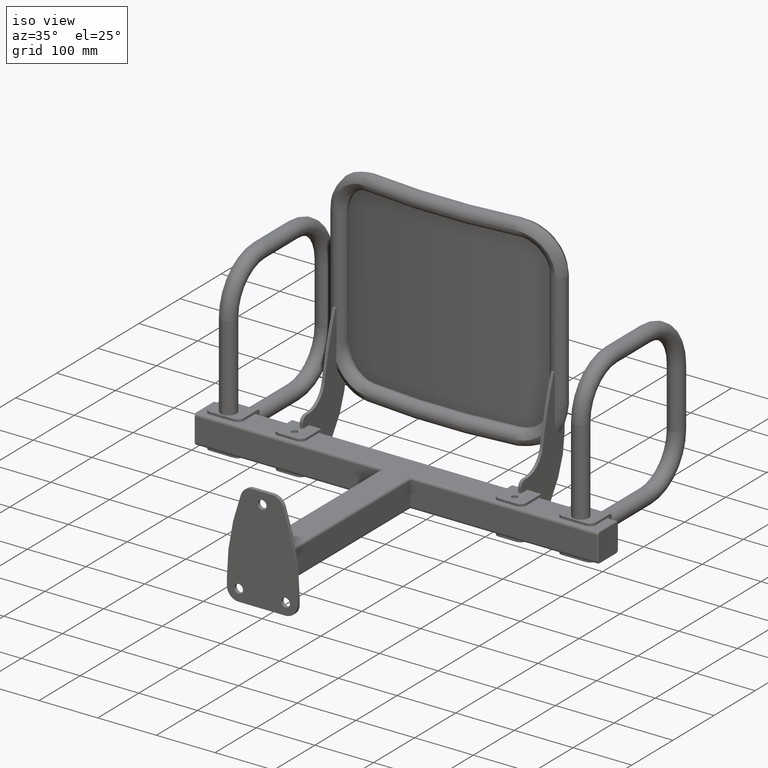
[diagram: clean part render]
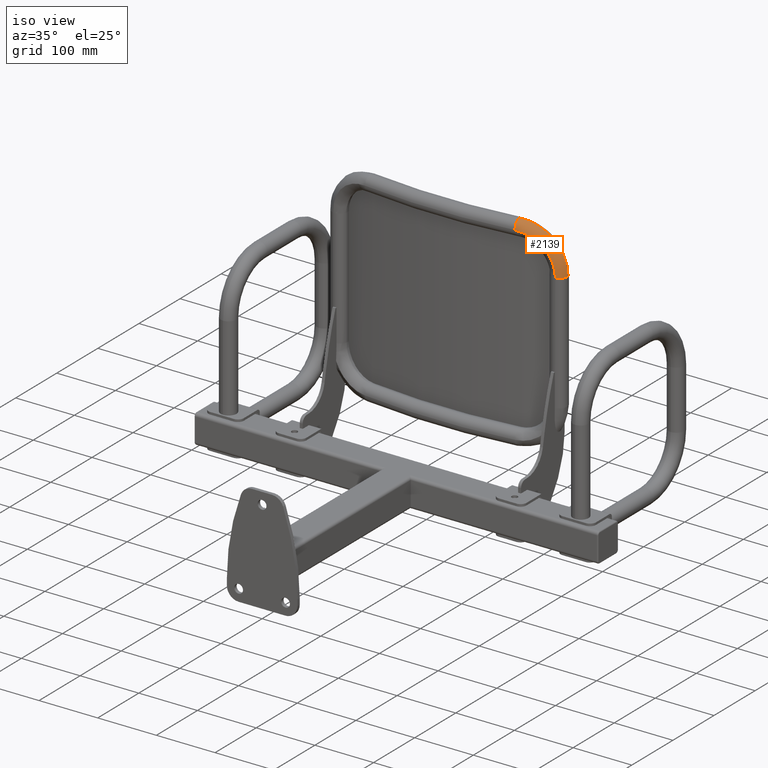
[diagram: same view with one face highlighted and labeled with its STEP entity id]
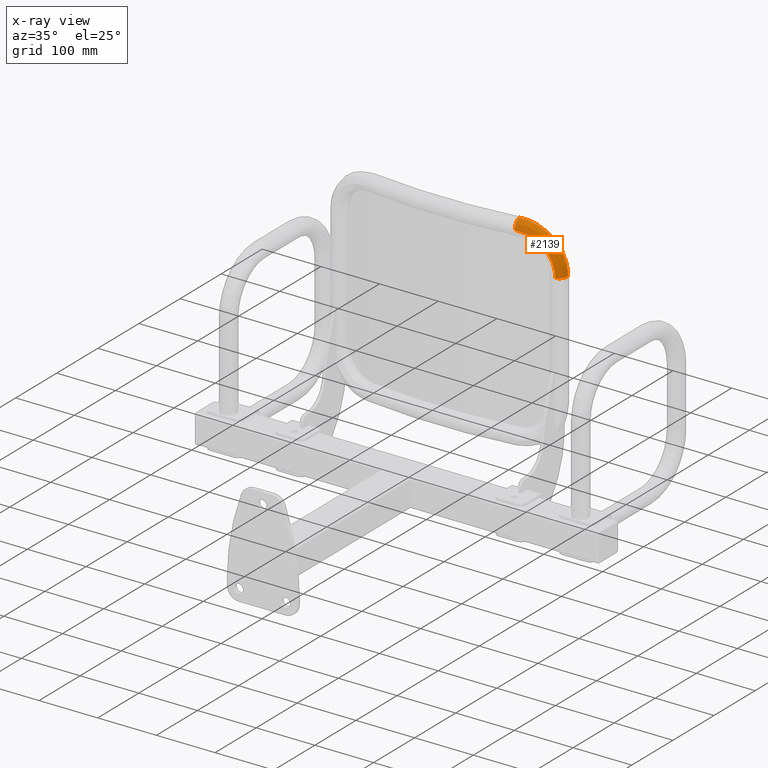
[diagram: x-ray of the same camera — body ghosted, the highlighted face saturated]
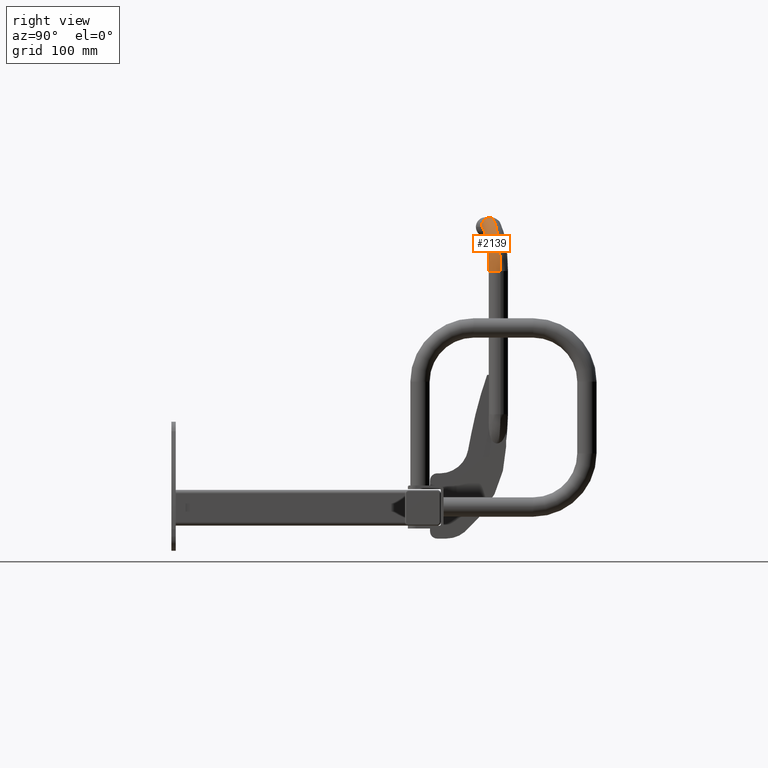
[diagram: same view with one face highlighted and labeled with its STEP entity id]
A machine part, iso view. The second image highlights one B-rep face of the part: STEP entity #2139.
The next image is the same camera in x-ray: the body ghosted, the highlighted face saturated — about 0% of this face is hidden behind the body in this view.
A second angle (right view) of the same face is appended — the face is thin or edge-on in the first view.
In plain terms, the highlighted face is a freeform B-spline surface patch.
Its self-contained STEP definition (entity closure, byte-faithful):
#58 = EDGE_CURVE ( 'NONE', #5017, #7052, #8422, .T. ) ;
#59 = EDGE_CURVE ( 'NONE', #9438, #5017, #8544, .T. ) ;
#62 = EDGE_CURVE ( 'NONE', #5504, #7052, #8546, .T. ) ;
#506 = CARTESIAN_POINT ( 'NONE',  ( 199.9790829043377600, 0.09498872071664302100, 104.9546064613530500 ) ) ;
#513 = CARTESIAN_POINT ( 'NONE',  ( 199.5030757878778900, -0.004181951459597438800, 109.8549293310262800 ) ) ;
#518 = CARTESIAN_POINT ( 'NONE',  ( 199.9790829043377600, 0.09498872071671755900, 100.0000000000000000 ) ) ;
#519 = CARTESIAN_POINT ( 'NONE',  ( 198.3170631611166400, -0.2493234025879186600, 115.9129793417992600 ) ) ;
#520 = CARTESIAN_POINT ( 'NONE',  ( 198.0494089384012900, -0.3045811928866862800, 117.1233093387160000 ) ) ;
#521 = CARTESIAN_POINT ( 'NONE',  ( 197.4589720175815700, -0.4262566043633408400, 119.5163302999799400 ) ) ;
#522 = CARTESIAN_POINT ( 'NONE',  ( 197.1358863844059500, -0.4927370740093468500, 120.7011228254300500 ) ) ;
#523 = CARTESIAN_POINT ( 'NONE',  ( 196.0844585247939200, -0.7086269899475369200, 124.2209636474438800 ) ) ;
#524 = CARTESIAN_POINT ( 'NONE',  ( 195.2741408135549900, -0.8744545556404446100, 126.5215566326727000 ) ) ;
#525 = CARTESIAN_POINT ( 'NONE',  ( 193.4374622965717900, -1.248143358309095700, 131.0320382189195500 ) ) ;
#526 = CARTESIAN_POINT ( 'NONE',  ( 192.4111027859642000, -1.456006578956051000, 133.2419271805817400 ) ) ;
#527 = CARTESIAN_POINT ( 'NONE',  ( 190.7068143206810500, -1.798720316563166400, 136.4876846277123800 ) ) ;
#528 = CARTESIAN_POINT ( 'NONE',  ( 190.1112108637728100, -1.918118615124225300, 137.5580706856095800 ) ) ;
#529 = CARTESIAN_POINT ( 'NONE',  ( 188.8639121756652300, -2.167223566844955800, 139.6753425578949600 ) ) ;
#530 = CARTESIAN_POINT ( 'NONE',  ( 188.2116082072699300, -2.297047557875324200, 140.7227916891441700 ) ) ;
#531 = CARTESIAN_POINT ( 'NONE',  ( 184.8456672564146300, -2.964240733875572100, 145.8430746219487400 ) ) ;
#532 = CARTESIAN_POINT ( 'NONE',  ( 181.7952333396388300, -3.560671323583596900, 149.6156325674405100 ) ) ;
#533 = CARTESIAN_POINT ( 'NONE',  ( 176.6934082383710100, -4.536208657356070300, 154.8002397313279100 ) ) ;
#534 = CARTESIAN_POINT ( 'NONE',  ( 174.9044793220926100, -4.874971450209156600, 156.4488397029378200 ) ) ;
#535 = CARTESIAN_POINT ( 'NONE',  ( 172.0840636152258000, -5.402703429524360800, 158.7984937292505700 ) ) ;
#536 = CARTESIAN_POINT ( 'NONE',  ( 171.1225608082127400, -5.581593606087965400, 159.5596224224561000 ) ) ;
#537 = CARTESIAN_POINT ( 'NONE',  ( 169.1749342679125600, -5.941745437852111100, 161.0241998468324000 ) ) ;
#538 = CARTESIAN_POINT ( 'NONE',  ( 168.1863709057057000, -6.123464660391345400, 161.7297187976151300 ) ) ;
#539 = CARTESIAN_POINT ( 'NONE',  ( 163.1708739766805500, -7.039590452662070100, 165.1255874178061700 ) ) ;
#540 = CARTESIAN_POINT ( 'NONE',  ( 158.9279471749625500, -7.796277654083475300, 167.4244994714157700 ) ) ;
#541 = CARTESIAN_POINT ( 'NONE',  ( 153.3323709517866900, -8.764235424441169500, 169.7716494785884200 ) ) ;
#542 = CARTESIAN_POINT ( 'NONE',  ( 152.1985310587830000, -8.958950508049817100, 170.2145199405625000 ) ) ;
#543 = CARTESIAN_POINT ( 'NONE',  ( 149.9007717287584000, -9.350509076246570600, 171.0460578940293000 ) ) ;
#544 = CARTESIAN_POINT ( 'NONE',  ( 148.7421650486292600, -9.546441163538931500, 171.4326840381320400 ) ) ;
#545 = CARTESIAN_POINT ( 'NONE',  ( 145.2563879167503800, -10.13129606361949300, 172.5002996055143600 ) ) ;
#546 = CARTESIAN_POINT ( 'NONE',  ( 142.9114910200763700, -10.51860310122336100, 173.0920986291455400 ) ) ;
#547 = CARTESIAN_POINT ( 'NONE',  ( 135.8149091519057400, -11.67157362569466800, 174.5159889080483700 ) ) ;
#548 = CARTESIAN_POINT ( 'NONE',  ( 131.0019106266229900, -12.42821388243553700, 175.0000000000000000 ) ) ;
#549 = CARTESIAN_POINT ( 'NONE',  ( 126.1034090729109800, -13.17078045312854900, 175.0000000000000000 ) ) ;
#550 = CARTESIAN_POINT ( 'NONE',  ( 186.8437831643230400, -2.797484397562839800, 100.0000000000000000 ) ) ;
#551 = DIRECTION ( 'NONE',  ( -0.0000000000000000000, 0.0000000000000000000, 1.000000000000000000 ) ) ;
#552 = DIRECTION ( 'NONE',  ( 1.000000000000000000, 0.0000000000000000000, 0.0000000000000000000 ) ) ;
#888 = CARTESIAN_POINT ( 'NONE',  ( 127.9271626772450200, -26.49656083518042100, 174.9999999999999700 ) ) ;
#890 = CARTESIAN_POINT ( 'NONE',  ( 127.9271626772450200, -26.49656083518042500, 161.5500000000000100 ) ) ;
#892 = CARTESIAN_POINT ( 'NONE',  ( 126.1034090729109800, -13.17078045312854900, 175.0000000000000000 ) ) ;
#893 = CARTESIAN_POINT ( 'NONE',  ( 132.0145831037049800, -25.93716037070743100, 161.5499999997742600 ) ) ;
#894 = CARTESIAN_POINT ( 'NONE',  ( 132.9025221593987300, -25.81563787858126000, 175.0716231223042300 ) ) ;
#895 = CARTESIAN_POINT ( 'NONE',  ( 130.9976024026385900, -12.42886696938685300, 175.0000000000000000 ) ) ;
#896 = CARTESIAN_POINT ( 'NONE',  ( 136.0309010812887600, -25.36019495662711900, 161.1534277605622700 ) ) ;
#897 = CARTESIAN_POINT ( 'NONE',  ( 137.7881586026481700, -25.10784705251022300, 174.6461844394378000 ) ) ;
#898 = CARTESIAN_POINT ( 'NONE',  ( 135.8078936268196100, -11.67268069272688000, 174.5167681891271900 ) ) ;
#899 = CARTESIAN_POINT ( 'NONE',  ( 141.9520260576262600, -24.47185413656290400, 159.9861915495888800 ) ) ;
#900 = CARTESIAN_POINT ( 'NONE',  ( 145.0019946085087100, -24.00860928269155500, 173.2928422297762600 ) ) ;
#901 = CARTESIAN_POINT ( 'NONE',  ( 142.9012547623788100, -10.52028248959366500, 173.0944657387466900 ) ) ;
#902 = CARTESIAN_POINT ( 'NONE',  ( 143.9084502281118600, -24.17192949885098900, 159.5010166622863000 ) ) ;
#903 = CARTESIAN_POINT ( 'NONE',  ( 147.3889283742086000, -23.63565818724908100, 172.7206100415889400 ) ) ;
#904 = CARTESIAN_POINT ( 'NONE',  ( 145.2452922087837000, -10.13313702495333900, 172.5032696940513100 ) ) ;
#905 = CARTESIAN_POINT ( 'NONE',  ( 146.8166383963904300, -23.71688465295274300, 158.6256354402585200 ) ) ;
#906 = CARTESIAN_POINT ( 'NONE',  ( 150.9380650626413300, -23.06783995308004300, 171.6774182266110000 ) ) ;
#907 = CARTESIAN_POINT ( 'NONE',  ( 148.7300770793124500, -9.548479599618421100, 171.4365988305555400 ) ) ;
#908 = CARTESIAN_POINT ( 'NONE',  ( 147.7832109499019000, -23.56409003576425900, 158.3086218968399200 ) ) ;
#909 = CARTESIAN_POINT ( 'NONE',  ( 152.1182355657343500, -22.87678216476028600, 171.2979480134990200 ) ) ;
#910 = CARTESIAN_POINT ( 'NONE',  ( 149.8883590662080700, -9.352613303949235400, 171.0503110034797800 ) ) ;
#911 = CARTESIAN_POINT ( 'NONE',  ( 149.7002749260907400, -23.25802327627210900, 157.6266942563181900 ) ) ;
#912 = CARTESIAN_POINT ( 'NONE',  ( 154.4593368061702000, -22.49342193555879300, 170.4788069176657100 ) ) ;
#913 = CARTESIAN_POINT ( 'NONE',  ( 152.1857889944671200, -8.961132749112177700, 170.2193674934634900 ) ) ;
#914 = CARTESIAN_POINT ( 'NONE',  ( 150.6462341440646100, -23.10548070702341100, 157.2634873279297900 ) ) ;
#915 = CARTESIAN_POINT ( 'NONE',  ( 155.6145956843193400, -22.30205443325137400, 170.0412015504755900 ) ) ;
#916 = CARTESIAN_POINT ( 'NONE',  ( 153.3195052224127700, -8.766449967349334600, 169.7767920324180300 ) ) ;
#917 = CARTESIAN_POINT ( 'NONE',  ( 155.3144842984864100, -22.34558195972577700, 155.3384463136066200 ) ) ;
#918 = CARTESIAN_POINT ( 'NONE',  ( 161.3202113829718800, -21.34664500232603900, 167.7142791639661300 ) ) ;
#919 = CARTESIAN_POINT ( 'NONE',  ( 158.9146462770482600, -7.798622414318154000, 167.4310881156477500 ) ) ;
#920 = CARTESIAN_POINT ( 'NONE',  ( 158.8538530044639600, -21.74644758317152000, 153.4526738952463300 ) ) ;
#921 = CARTESIAN_POINT ( 'NONE',  ( 165.6399281473381100, -20.59003901610600100, 165.4197848463422200 ) ) ;
#922 = CARTESIAN_POINT ( 'NONE',  ( 163.1578043976134900, -7.041939549849214300, 165.1332338284572100 ) ) ;
#1587 = CARTESIAN_POINT ( 'NONE',  ( 189.5459862649256900, -15.97324237967120600, 100.0000000000000000 ) ) ;
#2139 = ADVANCED_FACE ( 'NONE', ( #2604 ), #8344, .T. ) ;
#2604 = FACE_OUTER_BOUND ( 'NONE', #7405, .T. ) ;
#2942 = CARTESIAN_POINT ( 'NONE',  ( 170.7437853270287500, -19.66442213085670700, 162.0160232416184800 ) ) ;
#2943 = CARTESIAN_POINT ( 'NONE',  ( 168.1740444260328800, -6.125725673972905100, 161.7383630874696800 ) ) ;
#2944 = CARTESIAN_POINT ( 'NONE',  ( 163.8617807517003100, -20.87129310000236500, 150.0877715223921600 ) ) ;
#2945 = CARTESIAN_POINT ( 'NONE',  ( 171.7495938771805900, -19.48032872715140200, 161.3082279753932100 ) ) ;
#2946 = CARTESIAN_POINT ( 'NONE',  ( 169.1627794730686400, -5.943984145559498200, 161.0330278501741600 ) ) ;
#2947 = CARTESIAN_POINT ( 'NONE',  ( 165.4861957195684300, -20.58334015452416200, 148.8861139439863700 ) ) ;
#2948 = CARTESIAN_POINT ( 'NONE',  ( 173.7306197201462500, -19.11461313109641200, 159.8379545100648000 ) ) ;
#2949 = CARTESIAN_POINT ( 'NONE',  ( 171.1107899674729500, -5.583779077676497100, 159.5687822225860700 ) ) ;
#2950 = CARTESIAN_POINT ( 'NONE',  ( 166.2881014858874400, -20.44008477746326900, 148.2616136245269700 ) ) ;
#2951 = CARTESIAN_POINT ( 'NONE',  ( 174.7082300471577700, -18.93253974292858600, 159.0734598875395700 ) ) ;
#2952 = CARTESIAN_POINT ( 'NONE',  ( 172.0724913106869300, -5.404860593142500700, 158.8078151395776000 ) ) ;
#2953 = CARTESIAN_POINT ( 'NONE',  ( 168.6404853959768400, -20.01681983971639400, 146.3335216149282600 ) ) ;
#2954 = CARTESIAN_POINT ( 'NONE',  ( 177.5750760288455300, -18.39423701104449900, 156.7121463507038500 ) ) ;
#2955 = CARTESIAN_POINT ( 'NONE',  ( 174.8937711373202400, -4.876991221442850100, 156.4583935193609200 ) ) ;
#2956 = CARTESIAN_POINT ( 'NONE',  ( 170.1324338154208800, -19.74428483110825300, 144.9806455681740800 ) ) ;
#2957 = CARTESIAN_POINT ( 'NONE',  ( 179.3917972936517300, -18.04720819354608700, 155.0542184894032400 ) ) ;
#2958 = CARTESIAN_POINT ( 'NONE',  ( 176.6832915710356500, -4.538130677670089600, 154.8098849328094400 ) ) ;
#2959 = CARTESIAN_POINT ( 'NONE',  ( 174.3870239753394700, -18.95754316640274300, 140.7258843734511500 ) ) ;
#2960 = CARTESIAN_POINT ( 'NONE',  ( 184.5681083234563000, -17.04465681134926000, 149.8387848732979000 ) ) ;
#2961 = CARTESIAN_POINT ( 'NONE',  ( 181.7869002113267800, -3.562289469520021300, 149.6253668238197500 ) ) ;
#2962 = CARTESIAN_POINT ( 'NONE',  ( 176.9304962373359400, -18.47388584599544700, 137.6297187135622300 ) ) ;
#2963 = CARTESIAN_POINT ( 'NONE',  ( 187.6566781467602700, -16.42724802630496900, 146.0424212223438200 ) ) ;
#2964 = CARTESIAN_POINT ( 'NONE',  ( 184.8385343288781000, -2.965642197632989400, 145.8526223153834600 ) ) ;
#2965 = CARTESIAN_POINT ( 'NONE',  ( 179.7367709337947000, -17.93105226112826900, 133.4272388326992000 ) ) ;
#2966 = CARTESIAN_POINT ( 'NONE',  ( 191.0605546686499300, -15.73358651023515600, 140.8889968132146700 ) ) ;
#2967 = CARTESIAN_POINT ( 'NONE',  ( 188.2058926693526100, -2.298183572714335800, 140.7318101129775700 ) ) ;
#2968 = CARTESIAN_POINT ( 'NONE',  ( 180.2806032959076400, -17.82532319157298800, 132.5675266861858300 ) ) ;
#2969 = CARTESIAN_POINT ( 'NONE',  ( 191.7196123387059000, -15.59851440872078500, 139.8353308996725600 ) ) ;
#2970 = CARTESIAN_POINT ( 'NONE',  ( 188.8584823985969800, -2.168305508383125100, 139.6842323552361300 ) ) ;
#2971 = CARTESIAN_POINT ( 'NONE',  ( 181.3204983253601500, -17.62227682770648900, 130.8296546239952500 ) ) ;
#2972 = CARTESIAN_POINT ( 'NONE',  ( 192.9792782109418600, -15.33909187757148700, 137.7057294371957700 ) ) ;
#2973 = CARTESIAN_POINT ( 'NONE',  ( 190.1063786245768500, -1.919086137652085400, 137.5665978358862300 ) ) ;
#2974 = CARTESIAN_POINT ( 'NONE',  ( 181.8170465579594000, -17.52486901524836000, 129.9510684005047700 ) ) ;
#2975 = CARTESIAN_POINT ( 'NONE',  ( 193.5804890733240900, -15.21462386700526400, 136.6292837795106700 ) ) ;
#2976 = CARTESIAN_POINT ( 'NONE',  ( 190.7022676158503300, -1.799632734652710600, 136.4960216090794900 ) ) ;
#2977 = CARTESIAN_POINT ( 'NONE',  ( 183.2378538523164800, -17.24507230652332600, 127.2868948538325500 ) ) ;
#2978 = CARTESIAN_POINT ( 'NONE',  ( 195.2997958661792100, -14.85713219836534900, 133.3661968055569700 ) ) ;
#2979 = CARTESIAN_POINT ( 'NONE',  ( 192.4073741201324600, -1.456760100611355300, 133.2496687901782800 ) ) ;
#2980 = CARTESIAN_POINT ( 'NONE',  ( 184.0934396815821400, -17.07508851813623400, 125.4729597860428100 ) ) ;
#2981 = CARTESIAN_POINT ( 'NONE',  ( 196.3343684725010700, -14.63987136249428300, 131.1449649892301500 ) ) ;
#2982 = CARTESIAN_POINT ( 'NONE',  ( 193.4342277005376300, -1.248799489387030900, 131.0393498611176400 ) ) ;
#2983 = CARTESIAN_POINT ( 'NONE',  ( 185.6244551785820000, -16.76917252061229000, 121.7706030807648700 ) ) ;
#2984 = CARTESIAN_POINT ( 'NONE',  ( 198.1842753121485100, -14.24889627082266400, 126.6131391900870300 ) ) ;
#2985 = CARTESIAN_POINT ( 'NONE',  ( 195.2717945227309700, -0.8749339003138307800, 126.5279485143588400 ) ) ;
#2986 = CARTESIAN_POINT ( 'NONE',  ( 186.2998836851215300, -16.63323826290096000, 119.8821811430371000 ) ) ;
#2987 = CARTESIAN_POINT ( 'NONE',  ( 198.9997772614779000, -14.07514466483638500, 124.3024518018628400 ) ) ;
#2988 = CARTESIAN_POINT ( 'NONE',  ( 196.0825064738589300, -0.7090269347379905000, 124.2268657307534000 ) ) ;
#2989 = CARTESIAN_POINT ( 'NONE',  ( 187.1762616723476400, -16.45613070123701500, 116.9929272501093200 ) ) ;
#2990 = CARTESIAN_POINT ( 'NONE',  ( 200.0573531467765900, -13.84877105414522100, 120.7681205692404800 ) ) ;
#2991 = CARTESIAN_POINT ( 'NONE',  ( 197.1344497015129500, -0.4930325020623911300, 120.7062476646328800 ) ) ;
#2992 = CARTESIAN_POINT ( 'NONE',  ( 187.4455527057001500, -16.40156626373373800, 116.0203890589230700 ) ) ;
#2993 = CARTESIAN_POINT ( 'NONE',  ( 200.3821886043071500, -13.77903520635418600, 119.5787686576545500 ) ) ;
#2994 = CARTESIAN_POINT ( 'NONE',  ( 197.4576944255609600, -0.4265196284708406800, 119.5211889426304900 ) ) ;
#2995 = CARTESIAN_POINT ( 'NONE',  ( 187.9376745333360100, -16.30166579665912300, 114.0560679970975900 ) ) ;
#2996 = CARTESIAN_POINT ( 'NONE',  ( 200.9756549732595400, -13.65136436956222000, 117.1769332964600500 ) ) ;
#2997 = CARTESIAN_POINT ( 'NONE',  ( 198.0484235045256000, -0.3047845251581239300, 117.1276214424474900 ) ) ;
#2998 = CARTESIAN_POINT ( 'NONE',  ( 188.1607599477156900, -16.25627765193965100, 113.0625511818917800 ) ) ;
#2999 = CARTESIAN_POINT ( 'NONE',  ( 201.2446127327271500, -13.59335851100915000, 115.9622975893669700 ) ) ;
#3000 = CARTESIAN_POINT ( 'NONE',  ( 198.3162135174341600, -0.2494988852190369300, 115.9169998154744500 ) ) ;
#3001 = CARTESIAN_POINT ( 'NONE',  ( 189.1492760736044800, -16.05486691108714200, 108.0896728988411900 ) ) ;
#3002 = CARTESIAN_POINT ( 'NONE',  ( 202.4358361462911900, -13.33603303787098100, 109.8850054837146400 ) ) ;
#3003 = CARTESIAN_POINT ( 'NONE',  ( 199.5028338183275300, -0.004232497826875110000, 109.8574405753177400 ) ) ;
#3004 = CARTESIAN_POINT ( 'NONE',  ( 189.5459862647295500, -15.97324237971157000, 104.0669606014350600 ) ) ;
#3005 = CARTESIAN_POINT ( 'NONE',  ( 202.9136949434437400, -13.23167230086600900, 104.9686930520413500 ) ) ;
#3006 = CARTESIAN_POINT ( 'NONE',  ( 199.9790829041809300, 0.09498872142891587300, 104.9556790432061500 ) ) ;
#3007 = CARTESIAN_POINT ( 'NONE',  ( 189.5459862649253800, -15.97324237967140400, 100.0000000000000100 ) ) ;
#3008 = CARTESIAN_POINT ( 'NONE',  ( 202.9136949441210300, -13.23167230150801600, 100.0000000000000300 ) ) ;
#3009 = CARTESIAN_POINT ( 'NONE',  ( 199.9790829043377900, 0.09498872071664332700, 100.0000000000000100 ) ) ;
#3519 = ORIENTED_EDGE ( 'NONE', *, *, #5937, .T. ) ;
#3530 = ORIENTED_EDGE ( 'NONE', *, *, #62, .F. ) ;
#3536 = ORIENTED_EDGE ( 'NONE', *, *, #58, .T. ) ;
#3544 = ORIENTED_EDGE ( 'NONE', *, *, #59, .T. ) ;
#3697 = CARTESIAN_POINT ( 'NONE',  ( 163.0372488777540200, -21.01635567494640000, 150.6666166404436400 ) ) ;
#3878 = CARTESIAN_POINT ( 'NONE',  ( 126.1034090729110100, -13.17078045312862000, 161.5500000000000100 ) ) ;
#3880 = DIRECTION ( 'NONE',  ( -0.9907643406730017900, -0.1355950635192593500, -1.327525430361917900E-015 ) ) ;
#3881 = DIRECTION ( 'NONE',  ( 0.1355950635192594000, -0.9907643406730019000, 0.0000000000000000000 ) ) ;
#5017 = VERTEX_POINT ( 'NONE', #7883 ) ;
#5504 = VERTEX_POINT ( 'NONE', #7899 ) ;
#5937 = EDGE_CURVE ( 'NONE', #5504, #9438, #8370, .T. ) ;
#7052 = VERTEX_POINT ( 'NONE', #8148 ) ;
#7405 = EDGE_LOOP ( 'NONE', ( #3544, #3536, #3530, #3519 ) ) ;
#7883 = CARTESIAN_POINT ( 'NONE',  ( 199.9790829043377600, 0.09498872071671755900, 100.0000000000000000 ) ) ;
#7899 = CARTESIAN_POINT ( 'NONE',  ( 127.9271626772452800, -26.49656083518033600, 161.5500000000000100 ) ) ;
#8076 = CARTESIAN_POINT ( 'NONE',  ( 131.9848794914800900, -25.94122557877053800, 161.5500000000000700 ) ) ;
#8077 = CARTESIAN_POINT ( 'NONE',  ( 127.9271626772452800, -26.49656083518033600, 161.5500000000000100 ) ) ;
#8080 = CARTESIAN_POINT ( 'NONE',  ( 135.9739267768061700, -25.36838930536701400, 161.1591558695333800 ) ) ;
#8081 = CARTESIAN_POINT ( 'NONE',  ( 141.8584603787661800, -24.48606299193317400, 160.0073031275075000 ) ) ;
#8082 = CARTESIAN_POINT ( 'NONE',  ( 143.8033523792982500, -24.18812107482341400, 159.5284088772655200 ) ) ;
#8083 = CARTESIAN_POINT ( 'NONE',  ( 146.6952424078081400, -23.73599497906881300, 158.6641118738055500 ) ) ;
#8084 = CARTESIAN_POINT ( 'NONE',  ( 147.6559957026339000, -23.58425277171650700, 158.3512749047221200 ) ) ;
#8085 = CARTESIAN_POINT ( 'NONE',  ( 149.5644119977172900, -23.27984295483580700, 157.6772866510385700 ) ) ;
#8086 = CARTESIAN_POINT ( 'NONE',  ( 150.5064660893392300, -23.12807395975643100, 157.3181755404030200 ) ) ;
#8087 = CARTESIAN_POINT ( 'NONE',  ( 155.1571486493849400, -22.37176939763093500, 155.4140632087511700 ) ) ;
#8088 = CARTESIAN_POINT ( 'NONE',  ( 158.6886602986394600, -21.77463900514852900, 153.5464365725117400 ) ) ;
#8089 = CARTESIAN_POINT ( 'NONE',  ( 162.8686291533435100, -21.04592343342711300, 150.7824788996393600 ) ) ;
#8090 = CARTESIAN_POINT ( 'NONE',  ( 163.6927992475826000, -20.90107944032903100, 150.2080261317183800 ) ) ;
#8091 = CARTESIAN_POINT ( 'NONE',  ( 165.3171177523960900, -20.61344841881204800, 149.0150418507653900 ) ) ;
#8092 = CARTESIAN_POINT ( 'NONE',  ( 166.1189180327730800, -20.47036391782426900, 148.3951524317685400 ) ) ;
#8093 = CARTESIAN_POINT ( 'NONE',  ( 168.4758622910831000, -20.04671777845289800, 146.4772256679631000 ) ) ;
#8094 = CARTESIAN_POINT ( 'NONE',  ( 169.9720809018356500, -19.77367709269435600, 145.1302958191169800 ) ) ;
#8095 = CARTESIAN_POINT ( 'NONE',  ( 174.2423515854563000, -18.98477426992370500, 140.8903178241995700 ) ) ;
#8096 = CARTESIAN_POINT ( 'NONE',  ( 176.8001044746474700, -18.49881201758043800, 137.7999889352076100 ) ) ;
#8097 = CARTESIAN_POINT ( 'NONE',  ( 179.6267480913620600, -17.95239955060011300, 133.5974794538879600 ) ) ;
#8098 = CARTESIAN_POINT ( 'NONE',  ( 180.1748412966999200, -17.84590880524961100, 132.7373421797195200 ) ) ;
#8099 = CARTESIAN_POINT ( 'NONE',  ( 181.2243180798235500, -17.64111033951283500, 130.9961048372983300 ) ) ;
#8100 = CARTESIAN_POINT ( 'NONE',  ( 181.7255988858502200, -17.54282681257474200, 130.1155308896079000 ) ) ;
#8101 = CARTESIAN_POINT ( 'NONE',  ( 183.1603641734167200, -17.26042112758532800, 127.4444665454326200 ) ) ;
#8102 = CARTESIAN_POINT ( 'NONE',  ( 184.0249374912248800, -17.08872187069333700, 125.6247035018899300 ) ) ;
#8103 = CARTESIAN_POINT ( 'NONE',  ( 185.5729203464706000, -16.77952001373666500, 121.9080957211711600 ) ) ;
#8104 = CARTESIAN_POINT ( 'NONE',  ( 186.2563307210389200, -16.64201499010917800, 120.0112515250498100 ) ) ;
#8105 = CARTESIAN_POINT ( 'NONE',  ( 187.1435888878531800, -16.46274489838564400, 117.1072507953350300 ) ) ;
#8106 = CARTESIAN_POINT ( 'NONE',  ( 187.4163237382494200, -16.40749204800327700, 116.1294439194603900 ) ) ;
#8107 = CARTESIAN_POINT ( 'NONE',  ( 187.9148975283675900, -16.30629643546516400, 114.1538394914777500 ) ) ;
#8108 = CARTESIAN_POINT ( 'NONE',  ( 188.1410573692549500, -16.26028807754333300, 113.1540266936694600 ) ) ;
#8109 = CARTESIAN_POINT ( 'NONE',  ( 189.1434129032195400, -16.05607667304125000, 108.1481799470118800 ) ) ;
#8110 = CARTESIAN_POINT ( 'NONE',  ( 189.5459862649257200, -15.97324237967130000, 104.0973655438384600 ) ) ;
#8111 = CARTESIAN_POINT ( 'NONE',  ( 189.5459862649256900, -15.97324237967120600, 100.0000000000000000 ) ) ;
#8148 = CARTESIAN_POINT ( 'NONE',  ( 126.1034090729109800, -13.17078045312854900, 175.0000000000000000 ) ) ;
#8344 =( BOUNDED_SURFACE ( )  B_SPLINE_SURFACE ( 3, 2, ( 
 ( #890, #888, #892 ),
 ( #893, #894, #895 ),
 ( #896, #897, #898 ),
 ( #899, #900, #901 ),
 ( #902, #903, #904 ),
 ( #905, #906, #907 ),
 ( #908, #909, #910 ),
 ( #911, #912, #913 ),
 ( #914, #915, #916 ),
 ( #917, #918, #919 ),
 ( #920, #921, #922 ),
 ( #3697, #2942, #2943 ),
 ( #2944, #2945, #2946 ),
 ( #2947, #2948, #2949 ),
 ( #2950, #2951, #2952 ),
 ( #2953, #2954, #2955 ),
 ( #2956, #2957, #2958 ),
 ( #2959, #2960, #2961 ),
 ( #2962, #2963, #2964 ),
 ( #2965, #2966, #2967 ),
 ( #2968, #2969, #2970 ),
 ( #2971, #2972, #2973 ),
 ( #2974, #2975, #2976 ),
 ( #2977, #2978, #2979 ),
 ( #2980, #2981, #2982 ),
 ( #2983, #2984, #2985 ),
 ( #2986, #2987, #2988 ),
 ( #2989, #2990, #2991 ),
 ( #2992, #2993, #2994 ),
 ( #2995, #2996, #2997 ),
 ( #2998, #2999, #3000 ),
 ( #3001, #3002, #3003 ),
 ( #3004, #3005, #3006 ),
 ( #3007, #3008, #3009 ) ),
 .UNSPECIFIED., .F., .F., .F. ) 
 B_SPLINE_SURFACE_WITH_KNOTS ( ( 4, 2, 2, 2, 2, 2, 2, 2, 2, 2, 2, 2, 2, 2, 2, 2, 4 ),
 ( 3, 3 ),
 ( 0.0000000000000000000, 0.01202823028581979600, 0.01804234542872969200, 0.02104940300018464200, 0.02405646057163959200, 0.03608469085745938400, 0.03909174842891433000, 0.04209880600036928300, 0.04811292114327918300, 0.06014115142909897500, 0.06314820900055392900, 0.06615526657200887500, 0.07216938171491876800, 0.07818349685782866000, 0.08119055442928360700, 0.08419761200073856700, 0.09622584228655836600 ),
 ( 0.0000000000000000000, 1.000000000000000000 ),
 .UNSPECIFIED. ) 
 GEOMETRIC_REPRESENTATION_ITEM ( )  RATIONAL_B_SPLINE_SURFACE ( (
 ( 1.000000000000000000, 0.7071067811865474600, 1.000000000000000000),
 ( 1.000000000000000000, 0.7052290161603066400, 1.000000000000000000),
 ( 1.000000000000000000, 0.7036784012131711600, 1.000000000000000000),
 ( 1.000000000000000000, 0.7018088204622393600, 1.000000000000000000),
 ( 1.000000000000000000, 0.7012617068242479300, 1.000000000000000000),
 ( 1.000000000000000000, 0.7005508704092451300, 1.000000000000000000),
 ( 1.000000000000000000, 0.7003319007840286300, 1.000000000000000000),
 ( 1.000000000000000000, 0.6999312892549981500, 1.000000000000000000),
 ( 1.000000000000000000, 0.6997505279774689500, 1.000000000000000000),
 ( 1.000000000000000000, 0.6989380323202248900, 1.000000000000000000),
 ( 1.000000000000000000, 0.6985794751143170600, 1.000000000000000000),
 ( 1.000000000000000000, 0.6984029603312083000, 1.000000000000000000),
 ( 1.000000000000000000, 0.6983812803687375900, 1.000000000000000000),
 ( 1.000000000000000000, 0.6983629580265194900, 1.000000000000000000),
 ( 1.000000000000000000, 0.6983663655099224800, 1.000000000000000000),
 ( 1.000000000000000000, 0.6984104751644850700, 1.000000000000000000),
 ( 1.000000000000000000, 0.6984845366490657300, 1.000000000000000000),
 ( 1.000000000000000000, 0.6988033863258934500, 1.000000000000000000),
 ( 1.000000000000000000, 0.6991441727275307100, 1.000000000000000000),
 ( 1.000000000000000000, 0.6996234981635198700, 1.000000000000000000),
 ( 1.000000000000000000, 0.6997223673769836800, 1.000000000000000000),
 ( 1.000000000000000000, 0.6999212404629831000, 1.000000000000000000),
 ( 1.000000000000000000, 0.7000212890151434900, 1.000000000000000000),
 ( 1.000000000000000000, 0.7003196326416101200, 1.000000000000000000),
 ( 1.000000000000000000, 0.7005160381532082900, 1.000000000000000000),
 ( 1.000000000000000000, 0.7008869500976640000, 1.000000000000000000),
 ( 1.000000000000000000, 0.7010614825943499700, 1.000000000000000000),
 ( 1.000000000000000000, 0.7012960922421831400, 1.000000000000000000),
 ( 1.000000000000000000, 0.7013697810661154700, 1.000000000000000000),
 ( 1.000000000000000000, 0.7015065125008705900, 1.000000000000000000),
 ( 1.000000000000000000, 0.7015696306398981900, 1.000000000000000000),
 ( 1.000000000000000000, 0.7018525530596803100, 1.000000000000000000),
 ( 1.000000000000000000, 0.7019756032269066600, 1.000000000000000000),
 ( 1.000000000000000000, 0.7019749405814296200, 1.000000000000000000) ) ) 
 REPRESENTATION_ITEM ( '' )  SURFACE ( )  );
#8370 = B_SPLINE_CURVE_WITH_KNOTS ( 'NONE', 3,
 ( #8077, #8076, #8080, #8081, #8082, #8083, #8084, #8085, #8086, #8087, #8088, #8089, #8090, #8091, #8092, #8093, #8094, #8095, #8096, #8097, #8098, #8099, #8100, #8101, #8102, #8103, #8104, #8105, #8106, #8107, #8108, #8109, #8110, #8111 ),
 .UNSPECIFIED., .F., .F.,
 ( 4, 2, 2, 2, 2, 2, 2, 2, 2, 2, 2, 2, 2, 2, 2, 2, 4 ),
 ( 0.0000000000000000000, 0.01211758900671884600, 0.01817638351007822000, 0.02120578076175790700, 0.02423517801343759400, 0.03635276702015624600, 0.03938216427183589100, 0.04241156152351553700, 0.04847035602687482100, 0.06058794503359332000, 0.06361734228527293800, 0.06664673953695256200, 0.07270553404031177000, 0.07876432854367099200, 0.08179372579535060300, 0.08482312304703021300, 0.09694071205374865700 ),
 .UNSPECIFIED. ) ;
#8422 = B_SPLINE_CURVE_WITH_KNOTS ( 'NONE', 3,
 ( #518, #506, #513, #519, #520, #521, #522, #523, #524, #525, #526, #527, #528, #529, #530, #531, #532, #533, #534, #535, #536, #537, #538, #539, #540, #541, #542, #543, #544, #545, #546, #547, #548, #549 ),
 .UNSPECIFIED., .F., .F.,
 ( 4, 2, 2, 2, 2, 2, 2, 2, 2, 2, 2, 2, 2, 2, 2, 2, 4 ),
 ( 4.065758146820641600E-020, 0.01477204497180272500, 0.01846505621475338200, 0.02215806745770404100, 0.02954408994360533900, 0.03693011242950655600, 0.04062312367245720500, 0.04431613491540785400, 0.05908817988721041400, 0.06647420237311174600, 0.07016721361606244300, 0.07386022485901315400, 0.08863226983081595700, 0.09232528107376668200, 0.09601829231671742100, 0.1034043148026188200, 0.1181763597744215900 ),
 .UNSPECIFIED. ) ;
#8544 = CIRCLE ( 'NONE', #9519, 13.44999999999999000 ) ;
#8546 = CIRCLE ( 'NONE', #9522, 13.44999999999999800 ) ;
#9438 = VERTEX_POINT ( 'NONE', #1587 ) ;
#9519 = AXIS2_PLACEMENT_3D ( 'NONE', #550, #551, #552 ) ;
#9522 = AXIS2_PLACEMENT_3D ( 'NONE', #3878, #3880, #3881 ) ;